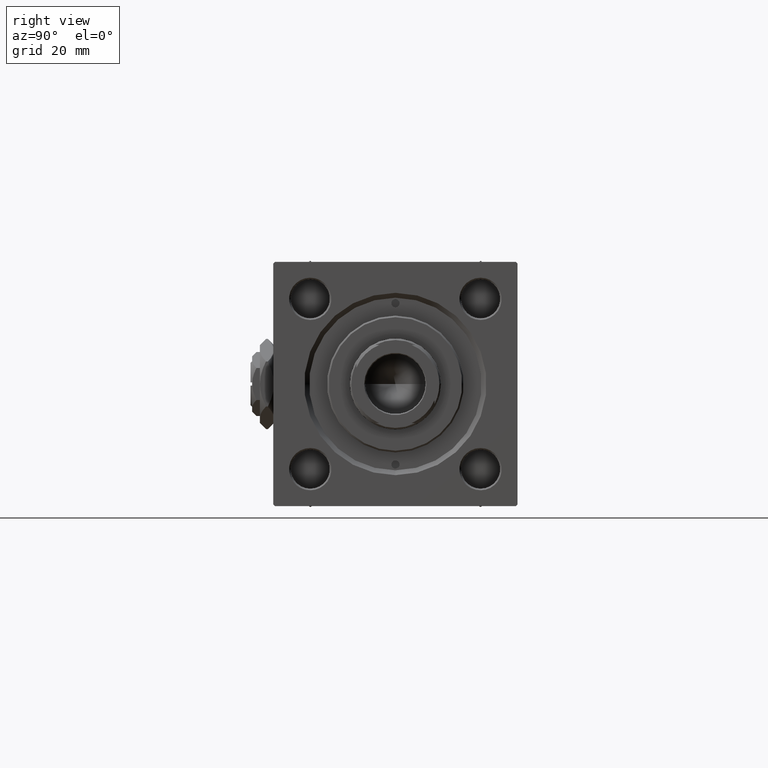
[diagram: clean part render]
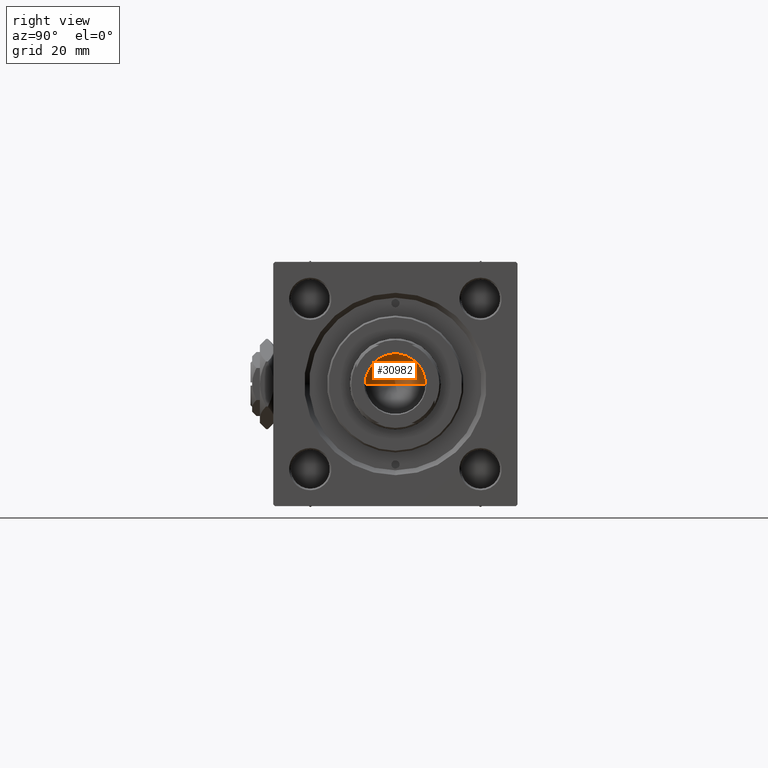
[diagram: same view with one face highlighted and labeled with its STEP entity id]
A machine part, right view. The second image highlights one B-rep face of the part: STEP entity #30982.
In plain terms, the highlighted conical surface has half-angle 59 deg.
Its self-contained STEP definition (entity closure, byte-faithful):
#705 = AXIS2_PLACEMENT_3D ( 'NONE', #24619, #35715, #52013 ) ;
#1192 = LINE ( 'NONE', #17232, #36454 ) ;
#1444 = DIRECTION ( 'NONE',  ( -0.8571673007021117785, 1.049727191138617956E-16, 0.5150380749100550437 ) ) ;
#5214 = CARTESIAN_POINT ( 'NONE',  ( 9.249999999999992895, 0.000000000000000000, 107.0000000000000142 ) ) ;
#6979 = EDGE_CURVE ( 'NONE', #51731, #35098, #23388, .T. ) ;
#8757 = CARTESIAN_POINT ( 'NONE',  ( -9.769621978240258809E-15, 0.000000000000000000, 101.4420392739950785 ) ) ;
#10298 = DIRECTION ( 'NONE',  ( -0.000000000000000000, -0.000000000000000000, 1.000000000000000000 ) ) ;
#10816 = FACE_OUTER_BOUND ( 'NONE', #45629, .T. ) ;
#11090 = DIRECTION ( 'NONE',  ( 1.000000000000000000, 0.000000000000000000, 0.000000000000000000 ) ) ;
#17232 = CARTESIAN_POINT ( 'NONE',  ( -9.249999999999992895, 1.132798289211300712E-15, 107.0000000000000142 ) ) ;
#19511 = CARTESIAN_POINT ( 'NONE',  ( 0.000000000000000000, 0.000000000000000000, 107.0000000000000142 ) ) ;
#19955 = ORIENTED_EDGE ( 'NONE', *, *, #6979, .T. ) ;
#21254 = DIRECTION ( 'NONE',  ( 0.8571673007021117785, 0.000000000000000000, 0.5150380749100550437 ) ) ;
#23388 = CIRCLE ( 'NONE', #705, 9.249999999999992895 ) ;
#24619 = CARTESIAN_POINT ( 'NONE',  ( 0.000000000000000000, 0.000000000000000000, 107.0000000000000142 ) ) ;
#25320 = VERTEX_POINT ( 'NONE', #8757 ) ;
#27757 = CONICAL_SURFACE ( 'NONE', #34473, 9.249999999999992895, 1.029744258676653423 ) ;
#30982 = ADVANCED_FACE ( 'NONE', ( #10816 ), #27757, .F. ) ;
#34473 = AXIS2_PLACEMENT_3D ( 'NONE', #19511, #10298, #11090 ) ;
#34530 = ORIENTED_EDGE ( 'NONE', *, *, #46376, .F. ) ;
#35098 = VERTEX_POINT ( 'NONE', #45036 ) ;
#35715 = DIRECTION ( 'NONE',  ( -0.000000000000000000, -0.000000000000000000, 1.000000000000000000 ) ) ;
#36454 = VECTOR ( 'NONE', #1444, 1000.000000000000000 ) ;
#37759 = ORIENTED_EDGE ( 'NONE', *, *, #43142, .T. ) ;
#43142 = EDGE_CURVE ( 'NONE', #25320, #51731, #1192, .T. ) ;
#45036 = CARTESIAN_POINT ( 'NONE',  ( 9.249999999999992895, 0.000000000000000000, 107.0000000000000142 ) ) ;
#45191 = LINE ( 'NONE', #5214, #46665 ) ;
#45629 = EDGE_LOOP ( 'NONE', ( #34530, #37759, #19955 ) ) ;
#46376 = EDGE_CURVE ( 'NONE', #25320, #35098, #45191, .T. ) ;
#46665 = VECTOR ( 'NONE', #21254, 1000.000000000000000 ) ;
#49766 = CARTESIAN_POINT ( 'NONE',  ( -9.249999999999992895, 1.132798289211300712E-15, 107.0000000000000142 ) ) ;
#51731 = VERTEX_POINT ( 'NONE', #49766 ) ;
#52013 = DIRECTION ( 'NONE',  ( 1.000000000000000000, 0.000000000000000000, 0.000000000000000000 ) ) ;